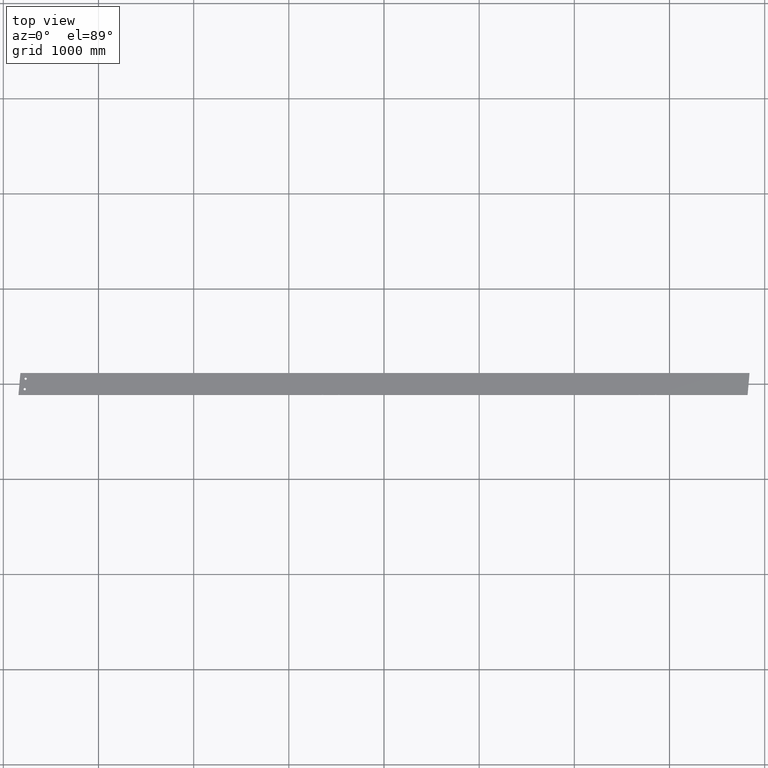
[diagram: clean part render]
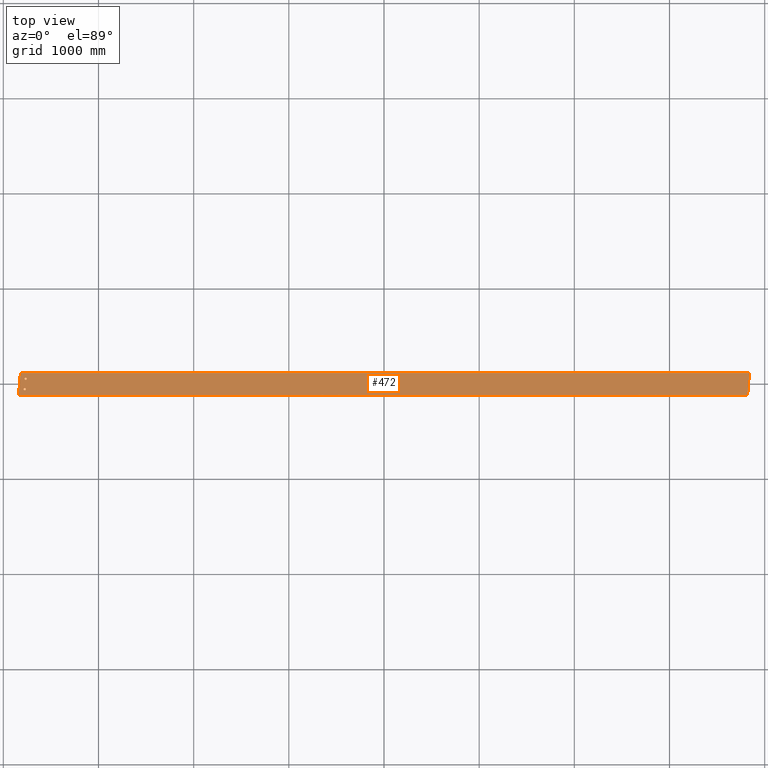
[diagram: same view with one face highlighted and labeled with its STEP entity id]
A machine part, top view. The second image highlights one B-rep face of the part: STEP entity #472.
In plain terms, the highlighted planar face has unit normal (0, -0, -1).
Its self-contained STEP definition (entity closure, byte-faithful):
#18 = PLANE ( 'NONE',  #387 ) ;
#22 = CARTESIAN_POINT ( 'NONE',  ( -3820.877607389039440, 114.9999999999992326, 13.70000000000000639 ) ) ;
#58 = VECTOR ( 'NONE', #503, 1000.000000000000000 ) ;
#77 = VERTEX_POINT ( 'NONE', #22 ) ;
#84 = CIRCLE ( 'NONE', #226, 12.00000000000001066 ) ;
#91 = DIRECTION ( 'NONE',  ( 1.000000000000000000, 0.000000000000000000, 0.000000000000000000 ) ) ;
#94 = CARTESIAN_POINT ( 'NONE',  ( -3820.877607389039440, 114.9999999999992326, 13.70000000000000639 ) ) ;
#112 = ORIENTED_EDGE ( 'NONE', *, *, #437, .F. ) ;
#120 = CARTESIAN_POINT ( 'NONE',  ( -3841.000000000000000, 114.9999999999992326, 13.69999999999879492 ) ) ;
#135 = AXIS2_PLACEMENT_3D ( 'NONE', #651, #874, #665 ) ;
#143 = ORIENTED_EDGE ( 'NONE', *, *, #170, .F. ) ;
#147 = CARTESIAN_POINT ( 'NONE',  ( -3775.503179293039466, -54.79070839504681345, 13.70000000000000639 ) ) ;
#152 = DIRECTION ( 'NONE',  ( -0.000000000000000000, -0.000000000000000000, 1.000000000000000000 ) ) ;
#154 = EDGE_LOOP ( 'NONE', ( #379, #732, #143, #473 ) ) ;
#156 = VERTEX_POINT ( 'NONE', #722 ) ;
#166 = VERTEX_POINT ( 'NONE', #328 ) ;
#170 = EDGE_CURVE ( 'NONE', #77, #156, #441, .T. ) ;
#176 = EDGE_CURVE ( 'NONE', #251, #581, #463, .T. ) ;
#199 = AXIS2_PLACEMENT_3D ( 'NONE', #787, #395, #861 ) ;
#217 = CARTESIAN_POINT ( 'NONE',  ( -3763.503179293039466, -54.79070839504681345, 13.70000000000000639 ) ) ;
#226 = AXIS2_PLACEMENT_3D ( 'NONE', #147, #152, #91 ) ;
#230 = EDGE_CURVE ( 'NONE', #166, #321, #320, .T. ) ;
#232 = DIRECTION ( 'NONE',  ( 3.223581824952207075E-30, -1.052901727158096773E-14, -1.000000000000000000 ) ) ;
#251 = VERTEX_POINT ( 'NONE', #451 ) ;
#285 = ORIENTED_EDGE ( 'NONE', *, *, #176, .F. ) ;
#289 = ORIENTED_EDGE ( 'NONE', *, *, #718, .F. ) ;
#292 = CARTESIAN_POINT ( 'NONE',  ( -3841.000000000000000, -115.0000000000008100, 13.70000000000121609 ) ) ;
#295 = FACE_BOUND ( 'NONE', #364, .T. ) ;
#320 = LINE ( 'NONE', #574, #751 ) ;
#321 = VERTEX_POINT ( 'NONE', #737 ) ;
#328 = CARTESIAN_POINT ( 'NONE',  ( -3841.000000000000000, -115.0000000000008100, 13.70000000000000639 ) ) ;
#364 = EDGE_LOOP ( 'NONE', ( #289, #112 ) ) ;
#379 = ORIENTED_EDGE ( 'NONE', *, *, #230, .T. ) ;
#387 = AXIS2_PLACEMENT_3D ( 'NONE', #292, #232, #632 ) ;
#395 = DIRECTION ( 'NONE',  ( -0.000000000000000000, -0.000000000000000000, 1.000000000000000000 ) ) ;
#397 = VERTEX_POINT ( 'NONE', #217 ) ;
#436 = VECTOR ( 'NONE', #626, 1000.000000000000114 ) ;
#437 = EDGE_CURVE ( 'NONE', #708, #397, #84, .T. ) ;
#441 = LINE ( 'NONE', #120, #58 ) ;
#451 = CARTESIAN_POINT ( 'NONE',  ( -3777.916047590798371, 54.79070839504525026, 13.70000000000000639 ) ) ;
#463 = CIRCLE ( 'NONE', #135, 12.00000000000001066 ) ;
#472 = ADVANCED_FACE ( 'NONE', ( #624, #772, #295 ), #18, .F. ) ;
#473 = ORIENTED_EDGE ( 'NONE', *, *, #705, .F. ) ;
#490 = LINE ( 'NONE', #94, #436 ) ;
#498 = ORIENTED_EDGE ( 'NONE', *, *, #882, .F. ) ;
#503 = DIRECTION ( 'NONE',  ( 1.000000000000000000, 3.061616997868382648E-16, -0.000000000000000000 ) ) ;
#505 = CARTESIAN_POINT ( 'NONE',  ( 3841.000000000000000, 115.0000000000015774, 13.70000000000000639 ) ) ;
#513 = DIRECTION ( 'NONE',  ( -0.08715574274765190699, -0.9961946980917459893, 0.000000000000000000 ) ) ;
#529 = VECTOR ( 'NONE', #513, 1000.000000000000114 ) ;
#543 = CIRCLE ( 'NONE', #199, 12.00000000000001066 ) ;
#574 = CARTESIAN_POINT ( 'NONE',  ( -3841.000000000000000, -115.0000000000008100, 13.70000000000121609 ) ) ;
#577 = LINE ( 'NONE', #505, #529 ) ;
#581 = VERTEX_POINT ( 'NONE', #659 ) ;
#624 = FACE_BOUND ( 'NONE', #860, .T. ) ;
#626 = DIRECTION ( 'NONE',  ( 0.08715574274765086615, 0.9961946980917461003, -0.000000000000000000 ) ) ;
#632 = DIRECTION ( 'NONE',  ( 0.000000000000000000, 1.000000000000000000, -1.052901727158096773E-14 ) ) ;
#637 = DIRECTION ( 'NONE',  ( 1.000000000000000000, 0.000000000000000000, 0.000000000000000000 ) ) ;
#651 = CARTESIAN_POINT ( 'NONE',  ( -3765.916047590798371, 54.79070839504525026, 13.70000000000000639 ) ) ;
#659 = CARTESIAN_POINT ( 'NONE',  ( -3753.916047590798371, 54.79070839504525026, 13.70000000000000639 ) ) ;
#665 = DIRECTION ( 'NONE',  ( 1.000000000000000000, 0.000000000000000000, 0.000000000000000000 ) ) ;
#696 = AXIS2_PLACEMENT_3D ( 'NONE', #698, #765, #637 ) ;
#698 = CARTESIAN_POINT ( 'NONE',  ( -3775.503179293039466, -54.79070839504681345, 13.70000000000000639 ) ) ;
#705 = EDGE_CURVE ( 'NONE', #166, #77, #490, .T. ) ;
#708 = VERTEX_POINT ( 'NONE', #775 ) ;
#718 = EDGE_CURVE ( 'NONE', #397, #708, #739, .T. ) ;
#722 = CARTESIAN_POINT ( 'NONE',  ( 3841.000000000000000, 115.0000000000015774, 13.70000000000000639 ) ) ;
#732 = ORIENTED_EDGE ( 'NONE', *, *, #865, .F. ) ;
#737 = CARTESIAN_POINT ( 'NONE',  ( 3820.877607389038985, -115.0000000000008100, 13.70000000000000639 ) ) ;
#739 = CIRCLE ( 'NONE', #696, 12.00000000000001066 ) ;
#751 = VECTOR ( 'NONE', #868, 1000.000000000000000 ) ;
#765 = DIRECTION ( 'NONE',  ( -0.000000000000000000, -0.000000000000000000, 1.000000000000000000 ) ) ;
#772 = FACE_OUTER_BOUND ( 'NONE', #154, .T. ) ;
#775 = CARTESIAN_POINT ( 'NONE',  ( -3787.503179293039466, -54.79070839504681345, 13.70000000000000639 ) ) ;
#787 = CARTESIAN_POINT ( 'NONE',  ( -3765.916047590798371, 54.79070839504525026, 13.70000000000000639 ) ) ;
#860 = EDGE_LOOP ( 'NONE', ( #498, #285 ) ) ;
#861 = DIRECTION ( 'NONE',  ( 1.000000000000000000, 0.000000000000000000, 0.000000000000000000 ) ) ;
#865 = EDGE_CURVE ( 'NONE', #156, #321, #577, .T. ) ;
#868 = DIRECTION ( 'NONE',  ( 1.000000000000000000, 3.061616997868382648E-16, -0.000000000000000000 ) ) ;
#874 = DIRECTION ( 'NONE',  ( -0.000000000000000000, -0.000000000000000000, 1.000000000000000000 ) ) ;
#882 = EDGE_CURVE ( 'NONE', #581, #251, #543, .T. ) ;